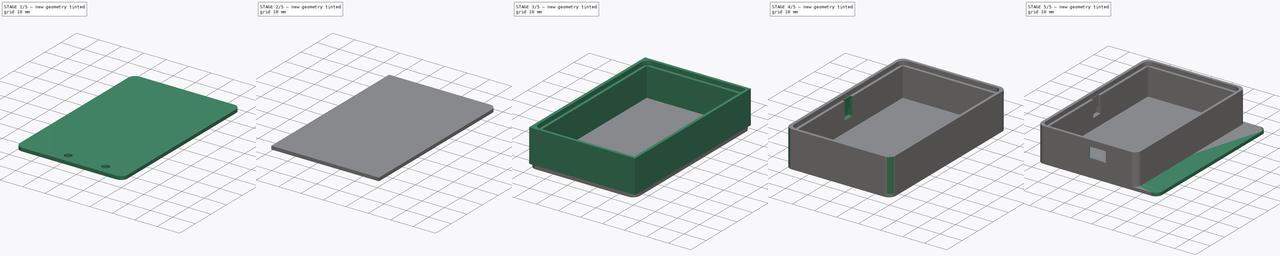
[diagram: build sequence overview — one tinted view per stage of 5, left to right]
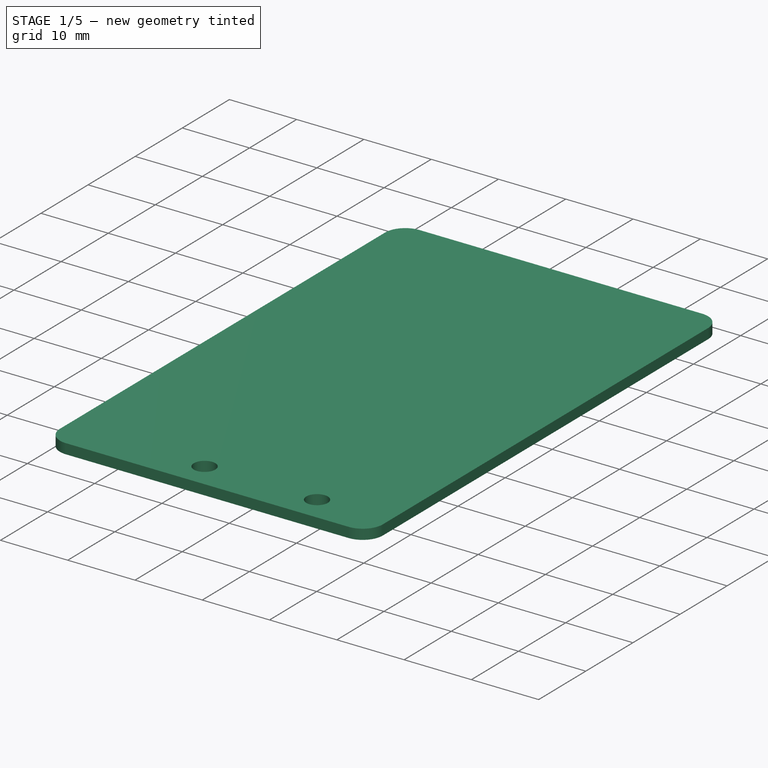
[diagram: stage 1 of 5 — iso view after this stage's code; geometry added in this stage tinted green]
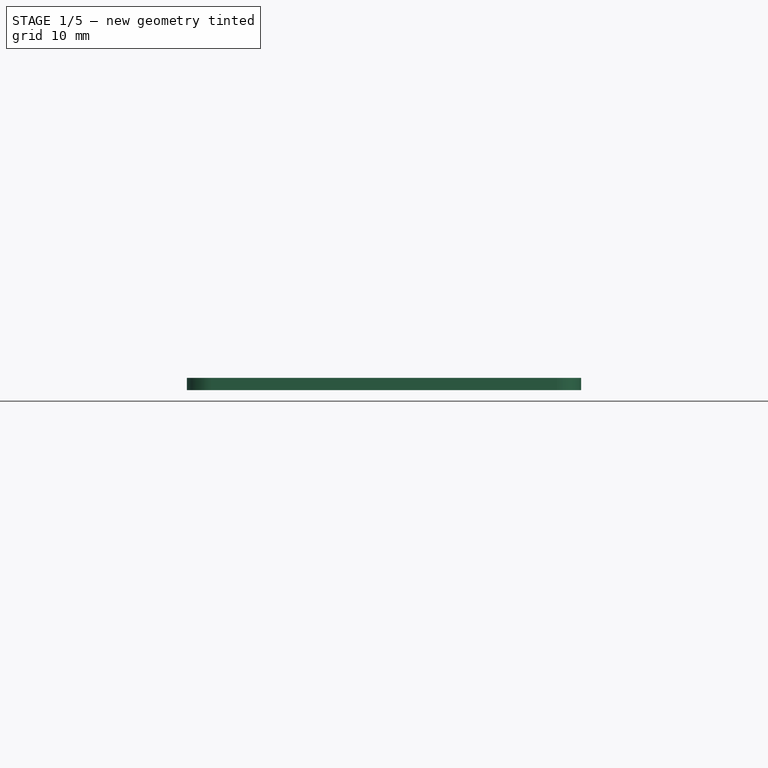
[diagram: stage 1 of 5 — front view after this stage's code; geometry added in this stage tinted green]
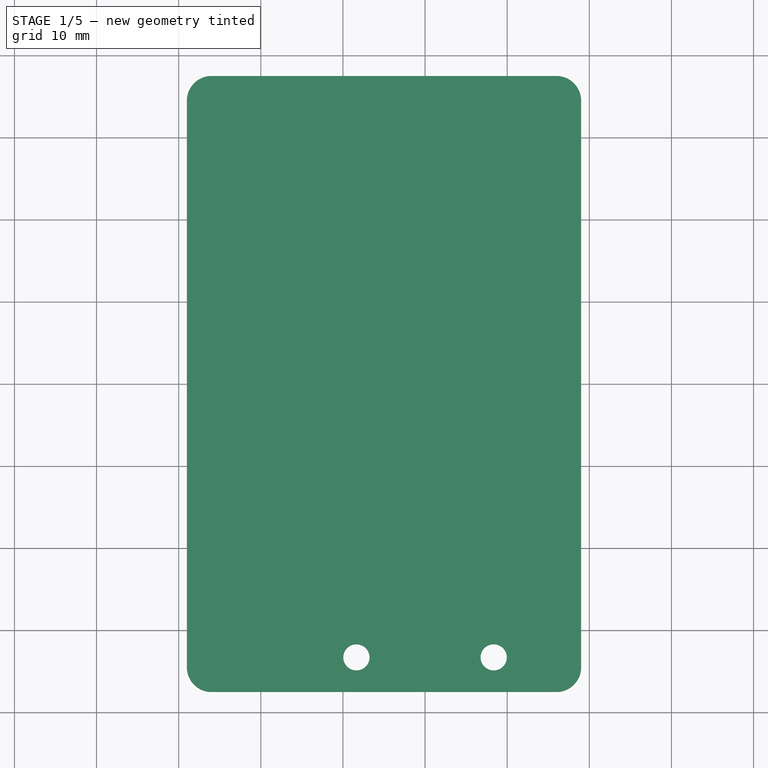
[diagram: stage 1 of 5 — top view after this stage's code; geometry added in this stage tinted green]
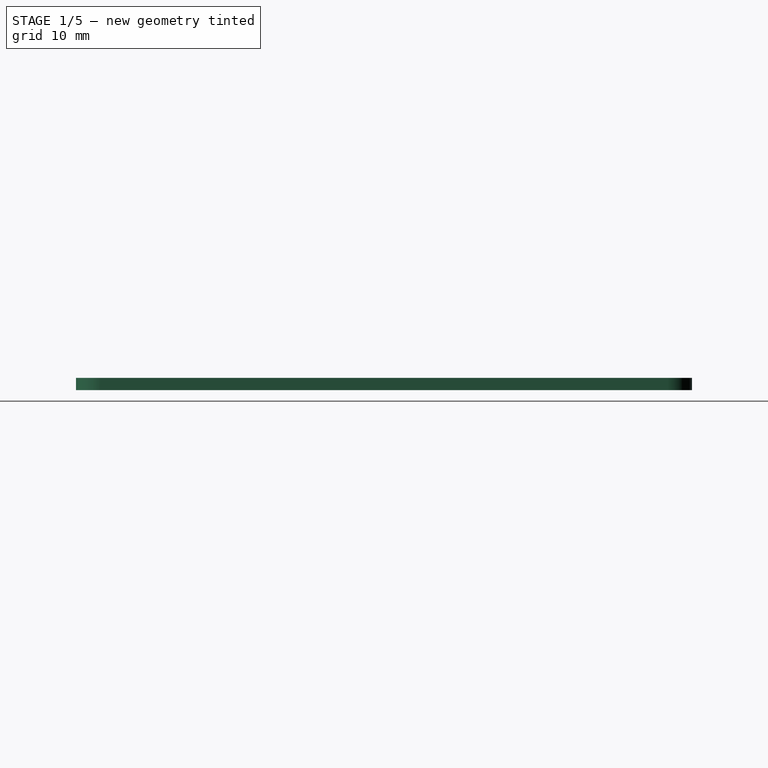
[diagram: stage 1 of 5 — right view after this stage's code; geometry added in this stage tinted green]
FCSTD DOCUMENT  (FreeCAD 0.16R)
Label: snap_case_top
License: All rights reserved
LicenseURL: http://en.wikipedia.org/wiki/All_rights_reserved
objects: PartDesign::Fillet×18, Sketcher::SketchObject×13, PartDesign::Pocket×11, PartDesign::Pad×2
note: 57 computed .brp shape members not serialized (recipe doc carries the construction recipe); baked Part::Feature solids carry a one-line shape summary decoded from their .brp

FEATURE [Sketcher::SketchObject] Sketch  label="base"
  sketch-geometry (8):
    g0: LineSegment [constr] StartX=-15 StartY=33.5 StartZ=0 EndX=15 EndY=33.5 EndZ=0
    g1: LineSegment [constr] StartX=15 StartY=33.5 StartZ=0 EndX=15 EndY=-33.5 EndZ=0
    g2: LineSegment [constr] StartX=15 StartY=-33.5 StartZ=0 EndX=-15 EndY=-33.5 EndZ=0
    g3: LineSegment [constr] StartX=-15 StartY=-33.5 StartZ=0 EndX=-15 EndY=33.5 EndZ=0
    g4: LineSegment StartX=-29 StartY=37.5 StartZ=0 EndX=19 EndY=37.5 EndZ=0
    g5: LineSegment StartX=19 StartY=37.5 StartZ=0 EndX=19 EndY=-37.5 EndZ=0
    g6: LineSegment StartX=19 StartY=-37.5 StartZ=0 EndX=-29 EndY=-37.5 EndZ=0
    g7: LineSegment StartX=-29 StartY=-37.5 StartZ=0 EndX=-29 EndY=37.5 EndZ=0
  constraints (24):
    c: Coincident(g0,g1)
    c: Coincident(g1,g2)
    c: Coincident(g2,g3)
    c: Coincident(g3,g0)
    c: Horizontal(g0)
    c: Horizontal(g2)
    c: Vertical(g1)
    c: Vertical(g3)
    c: Symmetric(g0,g0,g-2)
    c: Symmetric(g2,g0,g-1)
    c: DistanceX(g0,g0) = 30
    c: DistanceY(g3,g3) = 67
    c: Coincident(g4,g5)
    c: Coincident(g5,g6)
    c: Coincident(g6,g7)
    c: Coincident(g7,g4)
    c: Horizontal(g4)
    c: Horizontal(g6)
    c: Vertical(g5)
    c: Vertical(g7)
    c: DistanceX(g4,g4) = 48
    c: Symmetric(g4,g6,g-1)
    c: DistanceY(g7,g7) = 75
    c: DistanceX(g-1,g4) = 19
FEATURE [PartDesign::Pad] Pad
  Length = 1.5
  Length2 = 100
  Sketch = -> Sketch
  Type = 0
FEATURE [PartDesign::Fillet] Fillet014
  Base = -> Pad [Edge2]
  Radius = 3
FEATURE [PartDesign::Fillet] Fillet015
  Base = -> Fillet014 [Edge3]
  Radius = 3
FEATURE [PartDesign::Fillet] Fillet016
  Base = -> Fillet015 [Edge17]
  Radius = 3
FEATURE [PartDesign::Fillet] Fillet017
  Base = -> Fillet016 [Edge15]
  Radius = 3
FEATURE [Sketcher::SketchObject] Sketch016
  Placement = pos=(0,0,0) rot=(1,0,0;3.14159rad)
  Support = -> Fillet017 [Face1]
  sketch-geometry (2):
    g0: Circle CenterX=-8.35928 CenterY=33.2899 CenterZ=0 NormalX=0 NormalY=0 NormalZ=1 Radius=1.6
    g1: Circle CenterX=8.35928 CenterY=33.2899 CenterZ=0 NormalX=0 NormalY=0 NormalZ=1 Radius=1.6
  constraints (6):
    c: Equal(g1,g0)
    c: Radius(g0) = 1.6
    c: DistanceY(g-1,g0) = 33.2899
    c: DistanceY(g-1,g1) = 33.2899
    c: Symmetric(g0,g1,g-2)
    c: DistanceX(g0,g-1) = 8.35928
FEATURE [PartDesign::Pocket] Pocket012
  Length = 5
  Sketch = -> Sketch016
  Type = 1
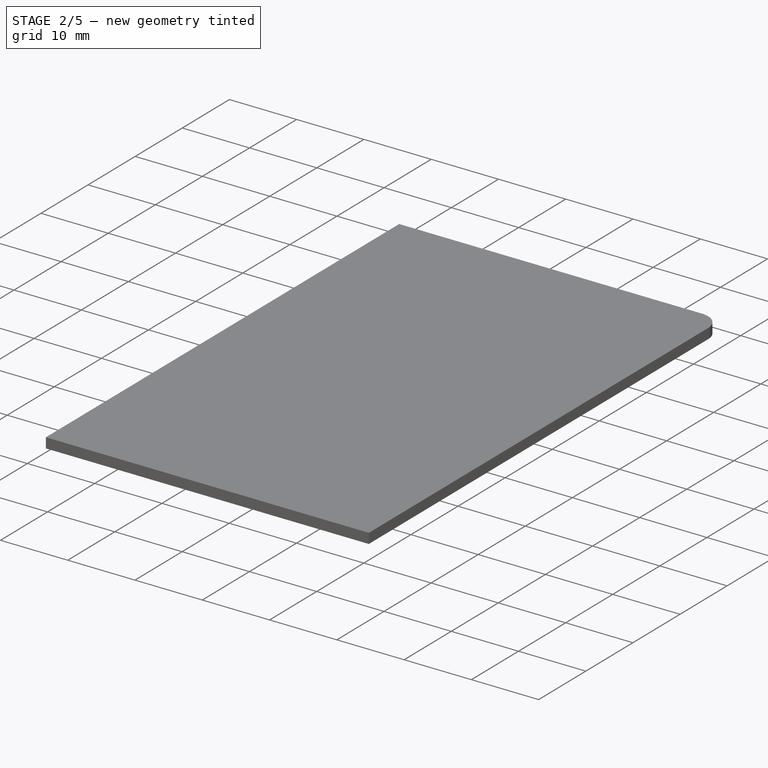
[diagram: stage 2 of 5 — iso view after this stage's code; geometry added in this stage tinted green]
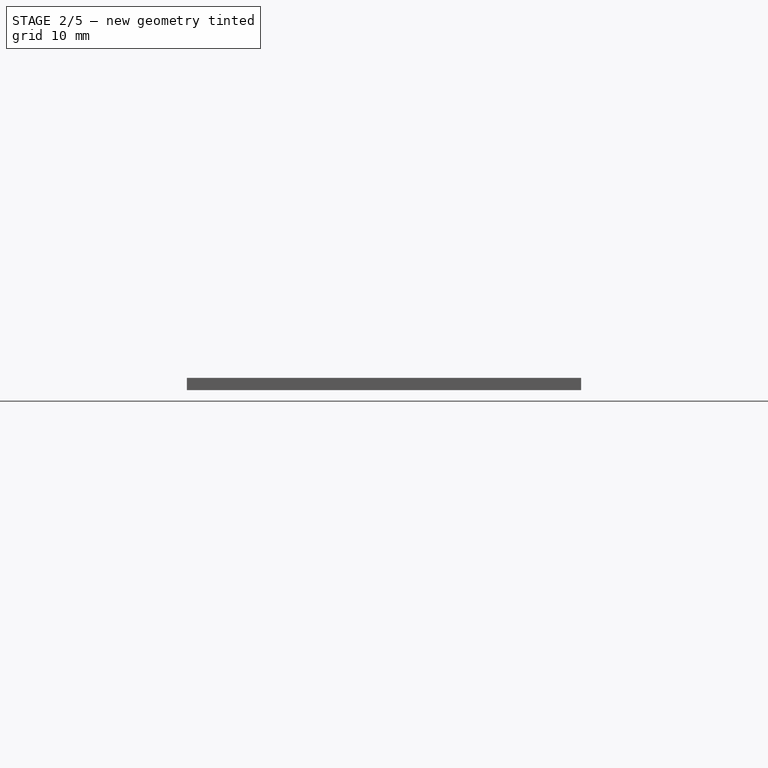
[diagram: stage 2 of 5 — front view after this stage's code; geometry added in this stage tinted green]
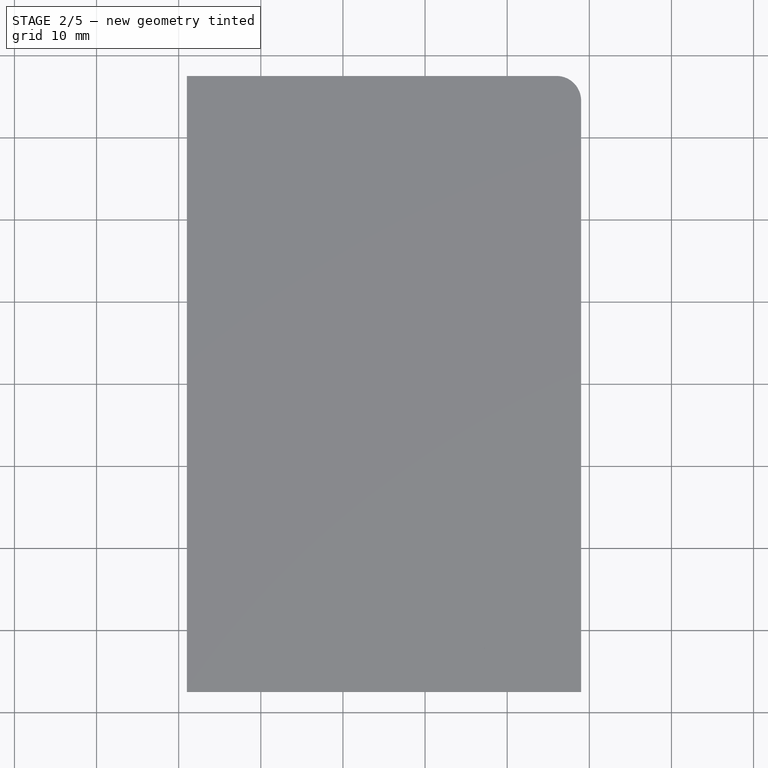
[diagram: stage 2 of 5 — top view after this stage's code; geometry added in this stage tinted green]
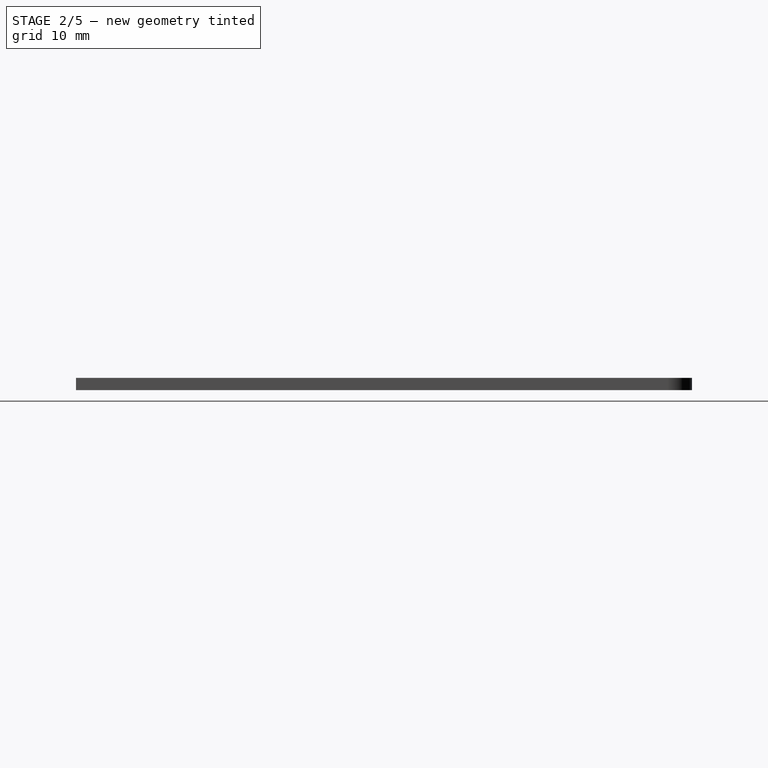
[diagram: stage 2 of 5 — right view after this stage's code; geometry added in this stage tinted green]
FEATURE [PartDesign::Fillet] Fillet006
  Base = -> Pad [Edge8]
  Radius = 3
FEATURE [PartDesign::Fillet] Fillet007
  Base = -> Fillet006 [Edge3,Edge11]
  Radius = 3
FEATURE [PartDesign::Fillet] Fillet008
  Base = -> Fillet007 [Edge20]
  Radius = 3
FEATURE [PartDesign::Fillet] Fillet010
  Base = -> Pad [Edge2]
  Radius = 3
FEATURE [PartDesign::Pocket] Pocket009
  Length = 5
  Sketch = -> Sketch010
  Type = 1
FEATURE [Sketcher::SketchObject] Sketch015
  Placement = pos=(0,0,0) rot=(1,0,0;3.14159rad)
  Support = -> Pocket009 [Face1]
  sketch-geometry (2):
    g0: Circle CenterX=-8.375 CenterY=33.3 CenterZ=0 NormalX=0 NormalY=0 NormalZ=1 Radius=2.45547
    g1: Circle CenterX=8.375 CenterY=33.3 CenterZ=0 NormalX=0 NormalY=0 NormalZ=1 Radius=2.5
  constraints (4):
    c: Symmetric(g0,g1,g-2)
    c: DistanceY(g-1,g0) = 33.3
    c: DistanceX(g0,g1) = 16.75
    c: Radius(g1) = 2.5
FEATURE [PartDesign::Pocket] Pocket011
  Length = 1
  Sketch = -> Sketch015
  Type = 0
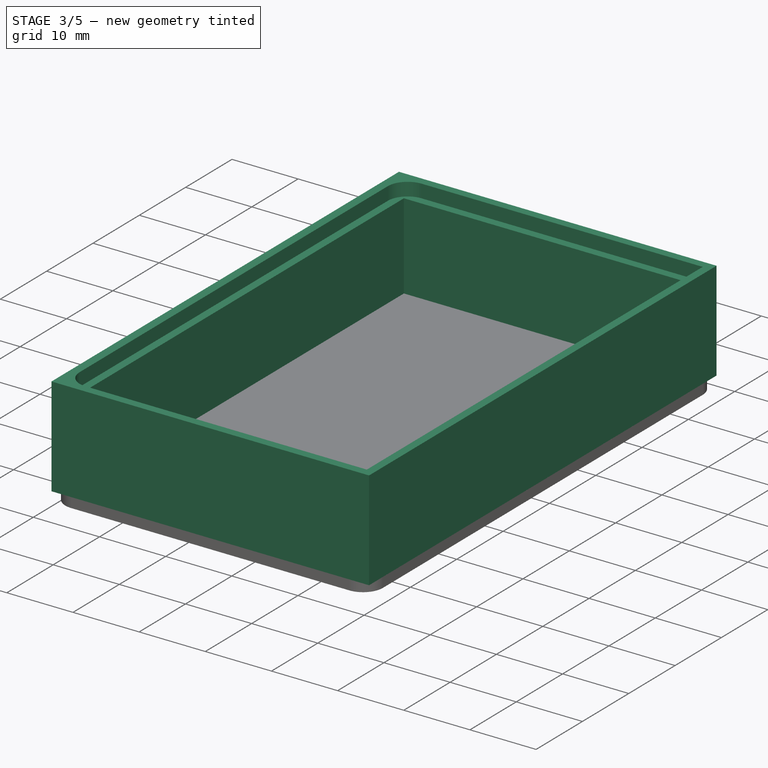
[diagram: stage 3 of 5 — iso view after this stage's code; geometry added in this stage tinted green]
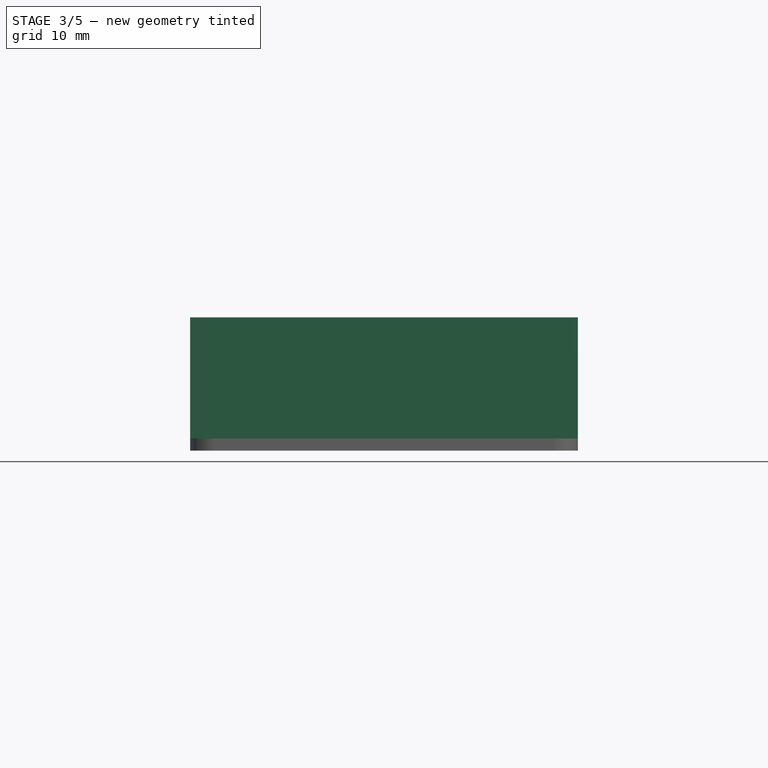
[diagram: stage 3 of 5 — front view after this stage's code; geometry added in this stage tinted green]
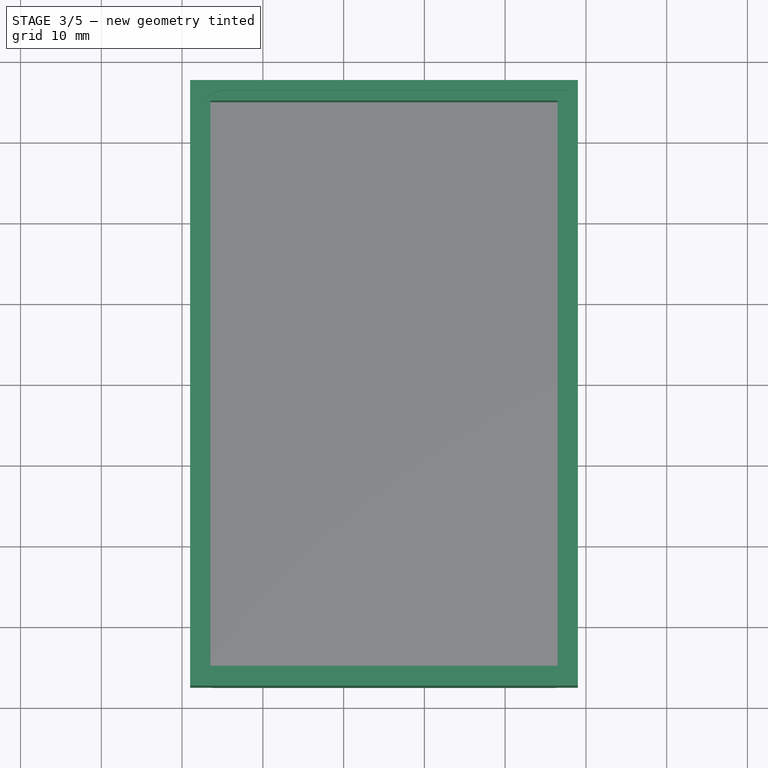
[diagram: stage 3 of 5 — top view after this stage's code; geometry added in this stage tinted green]
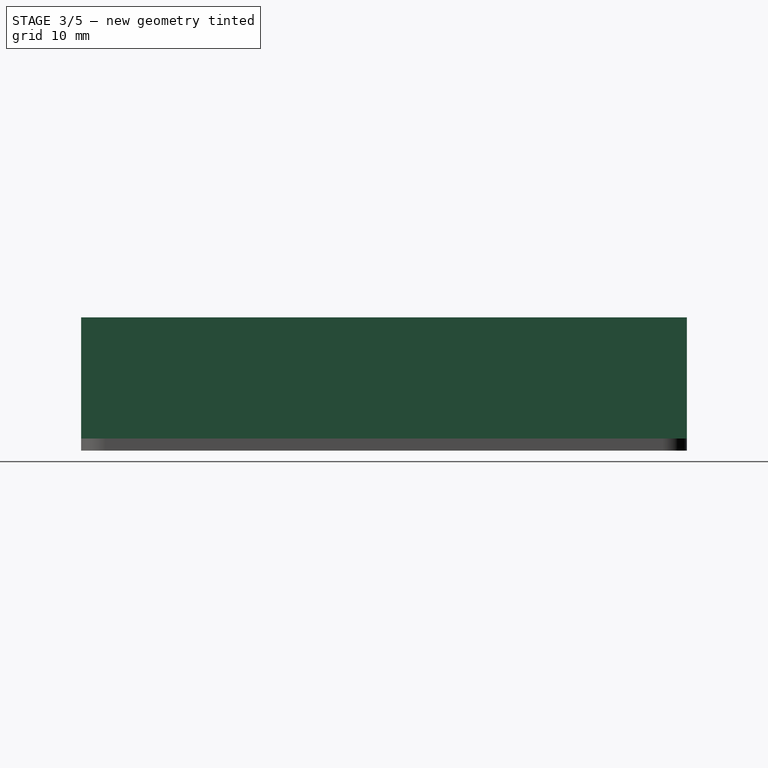
[diagram: stage 3 of 5 — right view after this stage's code; geometry added in this stage tinted green]
FEATURE [Sketcher::SketchObject] Sketch004  label="wall"
  Placement = pos=(0,0,1.5) rot=(0,0,1;0rad)
  sketch-geometry (8):
    g0: LineSegment StartX=-29 StartY=37.5 StartZ=0 EndX=19 EndY=37.5 EndZ=0
    g1: LineSegment StartX=19 StartY=37.5 StartZ=0 EndX=19 EndY=-37.5 EndZ=0
    g2: LineSegment StartX=19 StartY=-37.5 StartZ=0 EndX=-29 EndY=-37.5 EndZ=0
    g3: LineSegment StartX=-29 StartY=-37.5 StartZ=0 EndX=-29 EndY=37.5 EndZ=0
    g4: LineSegment StartX=-26.5 StartY=35 StartZ=0 EndX=-26.5 EndY=-35 EndZ=0
    g5: LineSegment StartX=16.5 StartY=35 StartZ=0 EndX=16.5 EndY=-35 EndZ=0
    g6: LineSegment StartX=-26.5 StartY=35 StartZ=0 EndX=16.5 EndY=35 EndZ=0
    g7: LineSegment StartX=-26.5 StartY=-35 StartZ=0 EndX=16.5 EndY=-35 EndZ=0
  constraints (24):
    c: Coincident(g0,g1)
    c: Coincident(g1,g2)
    c: Coincident(g2,g3)
    c: Coincident(g3,g0)
    c: Horizontal(g0)
    c: Horizontal(g2)
    c: Vertical(g1)
    c: Vertical(g3)
    c: DistanceX(g0,g0) = 48
    c: DistanceY(g3,g3) = 75
    c: Symmetric(g0,g2,g-1)
    c: Vertical(g4)
    c: Symmetric(g4,g4,g-1)
    c: DistanceY(g4,g4) = 70
    c: DistanceX(g0,g4) = 2.5
    c: Vertical(g5)
    c: DistanceY(g5,g5) = 70
    c: Symmetric(g5,g5,g-1)
    c: DistanceX(g5,g0) = 2.5
    c: Coincident(g6,g4)
    c: Coincident(g6,g5)
    c: Coincident(g7,g4)
    c: Coincident(g7,g5)
    c: DistanceX(g-1,g0) = 19
FEATURE [PartDesign::Pad] Pad002
  Length = 15
  Length2 = 100
  Placement = pos=(0,0,1.5) rot=(0,0,1;0rad)
  Sketch = -> Sketch004
  Type = 0
FEATURE [Sketcher::SketchObject] Sketch005
  Placement = pos=(0,0,16.5) rot=(0,0,1;0rad)
  Support = -> Pad002 [Face10]
  sketch-geometry (8):
    g0: LineSegment [constr] StartX=-26.4611 StartY=35 StartZ=0 EndX=16.5389 EndY=35 EndZ=0
    g1: LineSegment [constr] StartX=16.5389 StartY=35 StartZ=0 EndX=16.5389 EndY=-35 EndZ=0
    g2: LineSegment [constr] StartX=16.5389 StartY=-35 StartZ=0 EndX=-26.4611 EndY=-35 EndZ=0
    g3: LineSegment [constr] StartX=-26.4611 StartY=-35 StartZ=0 EndX=-26.4611 EndY=35 EndZ=0
    g4: LineSegment StartX=-27.7111 StartY=36.25 StartZ=0 EndX=17.7889 EndY=36.25 EndZ=0
    g5: LineSegment StartX=17.7889 StartY=36.25 StartZ=0 EndX=17.7889 EndY=-36.25 EndZ=0
    g6: LineSegment StartX=17.7889 StartY=-36.25 StartZ=0 EndX=-27.7111 EndY=-36.25 EndZ=0
    g7: LineSegment StartX=-27.7111 StartY=-36.25 StartZ=0 EndX=-27.7111 EndY=36.25 EndZ=0
  constraints (24):
    c: Coincident(g0,g1)
    c: Coincident(g1,g2)
    c: Coincident(g2,g3)
    c: Coincident(g3,g0)
    c: Horizontal(g0)
    c: Horizontal(g2)
    c: Vertical(g1)
    c: Vertical(g3)
    c: DistanceX(g0,g0) = 43
    c: DistanceY(g1,g1) = 70
    c: Symmetric(g0,g1,g-1)
    c: Coincident(g4,g5)
    c: Coincident(g5,g6)
    c: Coincident(g6,g7)
    c: Coincident(g7,g4)
    c: Horizontal(g4)
    c: Horizontal(g6)
    c: Vertical(g5)
    c: Vertical(g7)
    c: DistanceY(g5,g1) = 1.25
    c: DistanceX(g1,g5) = 1.25
    c: DistanceY(g0,g4) = 1.25
    c: DistanceX(g4,g0) = 1.25
    c: DistanceX(g-1,g0) = 16.5389
FEATURE [PartDesign::Pocket] Pocket
  Length = 2
  Placement = pos=(0,0,1.5) rot=(0,0,1;0rad)
  Sketch = -> Sketch005
  Type = 0
FEATURE [PartDesign::Fillet] Fillet
  Base = -> Pocket [Edge33]
  Placement = pos=(0,0,1.5) rot=(0,0,1;0rad)
  Radius = 3
FEATURE [PartDesign::Fillet] Fillet001
  Base = -> Fillet [Edge11]
  Placement = pos=(0,0,1.5) rot=(0,0,1;0rad)
  Radius = 3
FEATURE [PartDesign::Fillet] Fillet011
  Base = -> Fillet010 [Edge3]
  Radius = 3
FEATURE [PartDesign::Fillet] Fillet012
  Base = -> Fillet011 [Edge18]
  Radius = 3
FEATURE [PartDesign::Fillet] Fillet013
  Base = -> Fillet012 [Edge15]
  Radius = 3
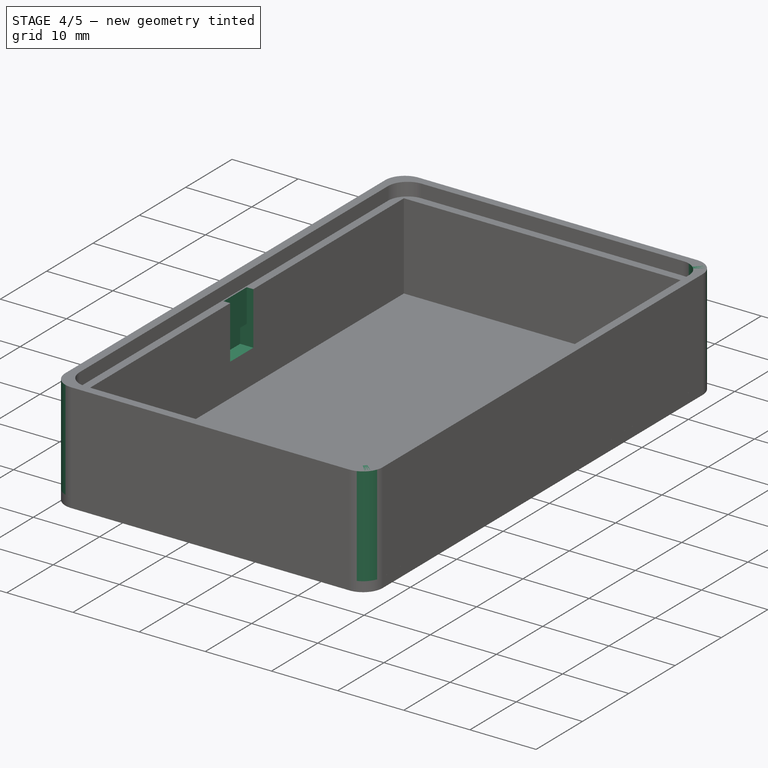
[diagram: stage 4 of 5 — iso view after this stage's code; geometry added in this stage tinted green]
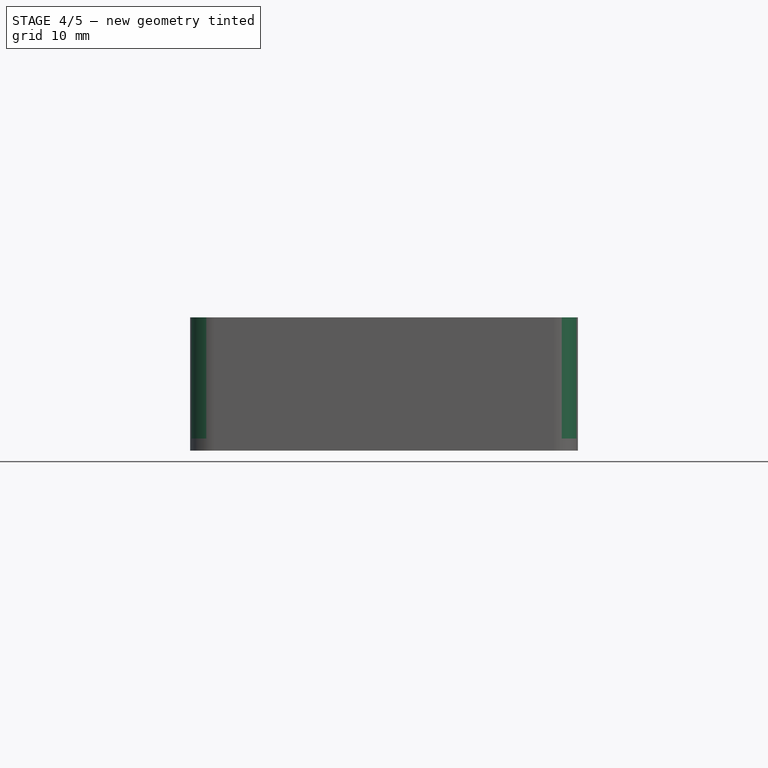
[diagram: stage 4 of 5 — front view after this stage's code; geometry added in this stage tinted green]
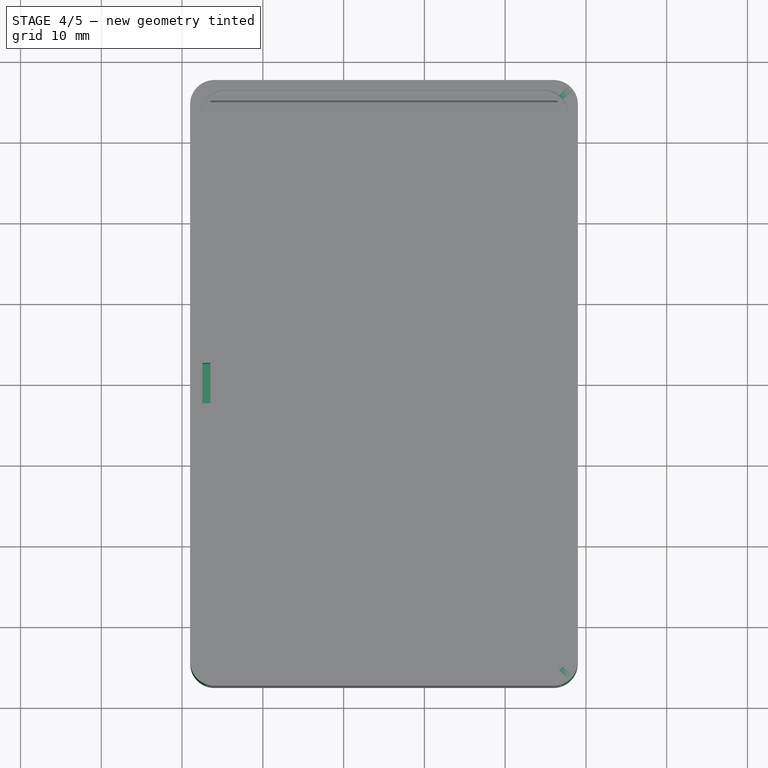
[diagram: stage 4 of 5 — top view after this stage's code; geometry added in this stage tinted green]
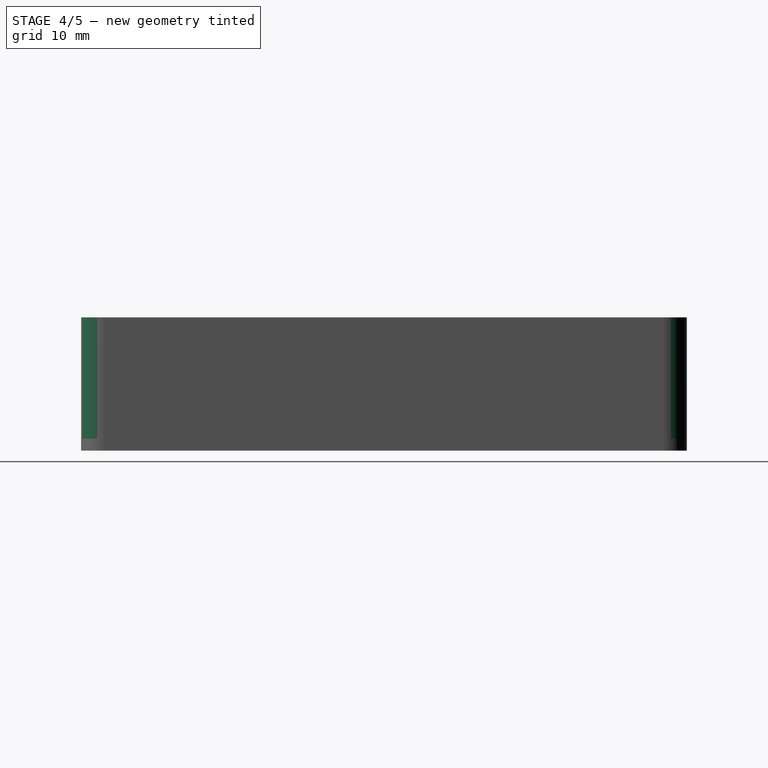
[diagram: stage 4 of 5 — right view after this stage's code; geometry added in this stage tinted green]
FEATURE [PartDesign::Fillet] Fillet002
  Base = -> Fillet001 [Edge18]
  Placement = pos=(0,0,1.5) rot=(0,0,1;0rad)
  Radius = 3
FEATURE [PartDesign::Fillet] Fillet003
  Base = -> Fillet002 [Edge19]
  Placement = pos=(0,0,1.5) rot=(0,0,1;0rad)
  Radius = 3
FEATURE [PartDesign::Fillet] Fillet004
  Base = -> Fillet003 [Edge29,Edge30]
  Placement = pos=(0,0,1.5) rot=(0,0,1;0rad)
  Radius = 3
FEATURE [PartDesign::Fillet] Fillet005
  Base = -> Fillet004 [Edge23,Edge25]
  Placement = pos=(0,0,1.5) rot=(0,0,1;0rad)
  Radius = 3
FEATURE [Sketcher::SketchObject] Sketch006
  Placement = pos=(-26.5,0,1.5) rot=(0.57735,0.57735,0.57735;2.0944rad)
  Support = -> Fillet005 [Face21]
  sketch-geometry (5):
    g0: LineSegment [constr] StartX=-35.1051 StartY=13 StartZ=0 EndX=36.4119 EndY=13 EndZ=0
    g1: LineSegment StartX=-2.5 StartY=8 StartZ=0 EndX=2.5 EndY=8 EndZ=0
    g2: LineSegment StartX=2.5 StartY=8 StartZ=0 EndX=2.5 EndY=13 EndZ=0
    g3: LineSegment StartX=2.5 StartY=13 StartZ=0 EndX=-2.5 EndY=13 EndZ=0
    g4: LineSegment StartX=-2.5 StartY=13 StartZ=0 EndX=-2.5 EndY=8 EndZ=0
  constraints (15):
    c: Horizontal(g0)
    c: DistanceX(g0,g0) = 71.517
    c: DistanceY(g-1,g0) = 13
    c: Coincident(g1,g2)
    c: Coincident(g2,g3)
    c: Coincident(g3,g4)
    c: Coincident(g4,g1)
    c: Horizontal(g1)
    c: Horizontal(g3)
    c: Vertical(g2)
    c: Vertical(g4)
    c: DistanceX(g1,g1) = 5
    c: Equal(g2,g1)
    c: DistanceY(g0,g1) = -5
    c: Symmetric(g1,g1,g-2)
FEATURE [PartDesign::Pocket] Pocket001
  Length = 1
  Placement = pos=(0,0,1.5) rot=(0,0,1;0rad)
  Sketch = -> Sketch006
  Type = 0
FEATURE [Sketcher::SketchObject] Sketch007
  Placement = pos=(-26.5,0,1.5) rot=(0.57735,0.57735,0.57735;2.0944rad)
  Support = -> Pocket001 [Face21]
  sketch-geometry (5):
    g0: LineSegment [constr] StartX=-34.4108 StartY=8 StartZ=0 EndX=34.406 EndY=8 EndZ=0
    g1: LineSegment StartX=-2.5 StartY=8 StartZ=0 EndX=2.5 EndY=8 EndZ=0
    g2: LineSegment StartX=2.5 StartY=8 StartZ=0 EndX=2.5 EndY=5 EndZ=0
    g3: LineSegment StartX=2.5 StartY=5 StartZ=0 EndX=-2.5 EndY=5 EndZ=0
    g4: LineSegment StartX=-2.5 StartY=5 StartZ=0 EndX=-2.5 EndY=8 EndZ=0
  constraints (14):
    c: Horizontal(g0)
    c: DistanceY(g-1,g0) = 8
    c: Coincident(g1,g2)
    c: Coincident(g2,g3)
    c: Coincident(g3,g4)
    c: Coincident(g4,g1)
    c: Horizontal(g1)
    c: Horizontal(g3)
    c: Vertical(g2)
    c: Vertical(g4)
    c: DistanceY(g2,g2) = 3
    c: DistanceX(g1,g1) = 5
    c: DistanceY(g-1,g1) = 8
    c: Symmetric(g3,g2,g-2)
FEATURE [PartDesign::Pocket] Pocket002
  Length = 2
  Placement = pos=(0,0,1.5) rot=(0,0,1;0rad)
  Sketch = -> Sketch007
  Type = 0
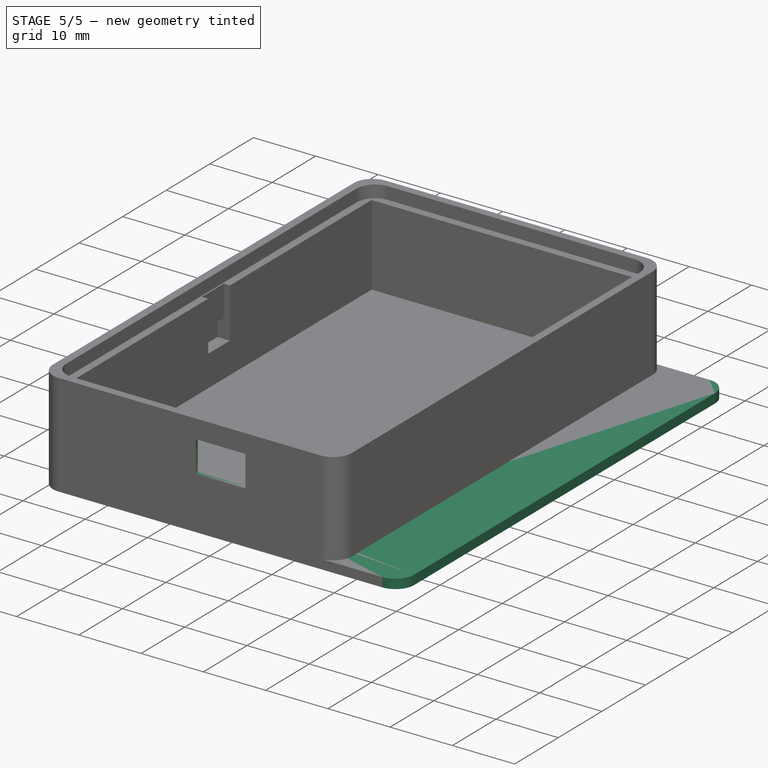
[diagram: stage 5 of 5 — iso view after this stage's code; geometry added in this stage tinted green]
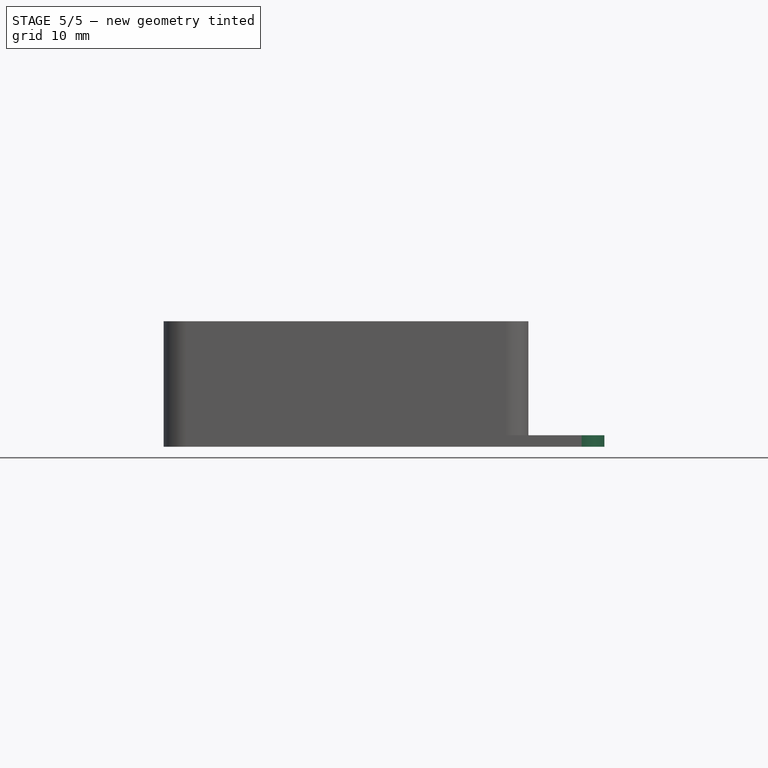
[diagram: stage 5 of 5 — front view after this stage's code; geometry added in this stage tinted green]
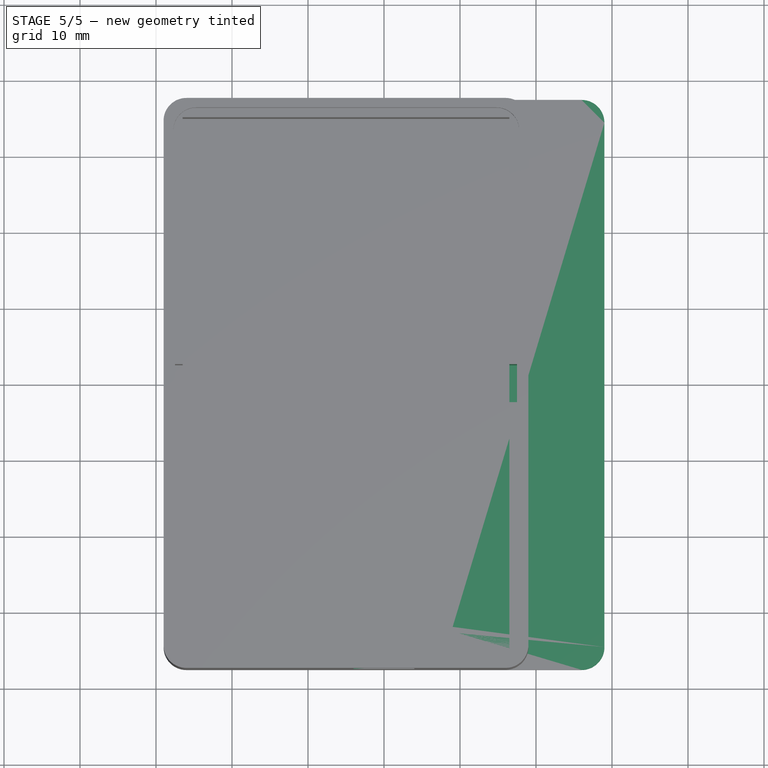
[diagram: stage 5 of 5 — top view after this stage's code; geometry added in this stage tinted green]
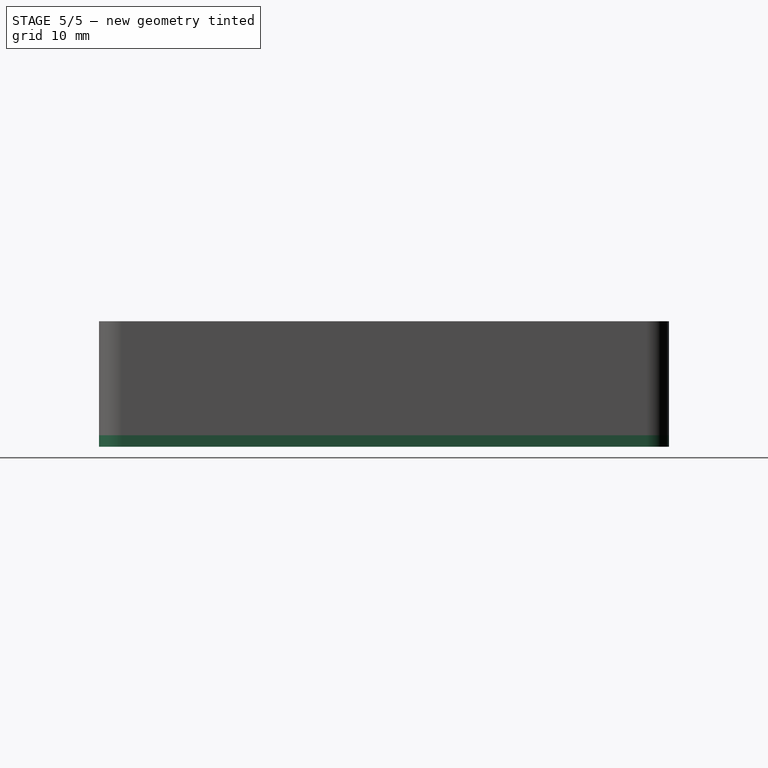
[diagram: stage 5 of 5 — right view after this stage's code; geometry added in this stage tinted green]
FEATURE [PartDesign::Fillet] Fillet009
  Base = -> Fillet008 [Edge8,Edge7,Edge5,Edge3,Edge1,Edge2,Edge4,Edge6]
  Radius = 1
FEATURE [Sketcher::SketchObject] Sketch008
  Placement = pos=(16.5,0,1.5) rot=(0.57735,-0.57735,-0.57735;2.0944rad)
  Support = -> Pocket002 [Face23]
  sketch-geometry (4):
    g0: LineSegment StartX=-2.5 StartY=13 StartZ=0 EndX=2.5 EndY=13 EndZ=0
    g1: LineSegment StartX=2.5 StartY=13 StartZ=0 EndX=2.5 EndY=8 EndZ=0
    g2: LineSegment StartX=2.5 StartY=8 StartZ=0 EndX=-2.5 EndY=8 EndZ=0
    g3: LineSegment StartX=-2.5 StartY=8 StartZ=0 EndX=-2.5 EndY=13 EndZ=0
  constraints (12):
    c: Coincident(g0,g1)
    c: Coincident(g1,g2)
    c: Coincident(g2,g3)
    c: Coincident(g3,g0)
    c: Horizontal(g0)
    c: Horizontal(g2)
    c: Vertical(g1)
    c: Vertical(g3)
    c: DistanceX(g0,g0) = 5
    c: DistanceY(g1,g1) = 5
    c: Symmetric(g0,g0,g-2)
    c: DistanceY(g-1,g0) = 13
FEATURE [PartDesign::Pocket] Pocket003
  Length = 1
  Placement = pos=(0,0,1.5) rot=(0,0,1;0rad)
  Sketch = -> Sketch008
  Type = 0
FEATURE [Sketcher::SketchObject] Sketch009
  Placement = pos=(16.5,0,1.5) rot=(0.57735,-0.57735,-0.57735;2.0944rad)
  Support = -> Pocket003 [Face23]
  sketch-geometry (4):
    g0: LineSegment StartX=-2.5 StartY=8 StartZ=0 EndX=2.5 EndY=8 EndZ=0
    g1: LineSegment StartX=2.5 StartY=8 StartZ=0 EndX=2.5 EndY=5 EndZ=0
    g2: LineSegment StartX=2.5 StartY=5 StartZ=0 EndX=-2.5 EndY=5 EndZ=0
    g3: LineSegment StartX=-2.5 StartY=5 StartZ=0 EndX=-2.5 EndY=8 EndZ=0
  constraints (12):
    c: Coincident(g0,g1)
    c: Coincident(g1,g2)
    c: Coincident(g2,g3)
    c: Coincident(g3,g0)
    c: Horizontal(g0)
    c: Horizontal(g2)
    c: Vertical(g1)
    c: Vertical(g3)
    c: Symmetric(g0,g0,g-2)
    c: DistanceX(g2,g2) = 5
    c: DistanceY(g1,g1) = 3
    c: DistanceY(g-1,g0) = 8
FEATURE [PartDesign::Pocket] Pocket004
  Length = 2
  Placement = pos=(0,0,1.5) rot=(0,0,1;0rad)
  Sketch = -> Sketch009
  Type = 0
FEATURE [Sketcher::SketchObject] Sketch010
  Placement = pos=(0,0,0) rot=(1,0,0;3.14159rad)
  Support = -> Fillet008 [Face1]
  sketch-geometry (3):
    g0: Circle CenterX=-8.375 CenterY=33.3 CenterZ=0 NormalX=0 NormalY=0 NormalZ=1 Radius=1.6
    g1: Circle CenterX=8.375 CenterY=33.3 CenterZ=0 NormalX=0 NormalY=0 NormalZ=1 Radius=1.6
    g2: LineSegment [constr] StartX=-19.0049 StartY=36.3 StartZ=0 EndX=26.1114 EndY=36.3 EndZ=0
  constraints (9):
    c: DistanceX(g0,g1) = 16.75
    c: Symmetric(g0,g1,g-2)
    c: Equal(g0,g1)
    c: Radius(g0) = 1.6
    c: Horizontal(g2)
    c: DistanceX(g2,g2) = 45.1163
    c: DistanceY(g-1,g2) = 36.3
    c: DistanceY(g1,g2) = 3
    c: DistanceX(g2,g-1) = 19.0049
FEATURE [Sketcher::SketchObject] Sketch011
  Placement = pos=(0,-35,1.5) rot=(0,0.707107,0.707107;3.14159rad)
  Support = -> Pocket004 [Face22]
  sketch-geometry (4):
    g0: LineSegment StartX=-11.5 StartY=12 StartZ=0 EndX=11.5 EndY=12 EndZ=0
    g1: LineSegment StartX=11.5 StartY=12 StartZ=0 EndX=11.5 EndY=0 EndZ=0
    g2: LineSegment StartX=11.5 StartY=0 StartZ=0 EndX=-11.5 EndY=0 EndZ=0
    g3: LineSegment StartX=-11.5 StartY=0 StartZ=0 EndX=-11.5 EndY=12 EndZ=0
  constraints (11):
    c: Coincident(g0,g1)
    c: Coincident(g1,g2)
    c: Coincident(g2,g3)
    c: Coincident(g3,g0)
    c: Horizontal(g0)
    c: Horizontal(g2)
    c: Vertical(g3)
    c: Symmetric(g0,g0,g-2)
    c: DistanceX(g0,g0) = 23
    c: DistanceY(g-1,g2) = 0
    c: DistanceY(g1,g1) = 12
FEATURE [PartDesign::Pocket] Pocket006
  Length = 2
  Placement = pos=(0,0,1.5) rot=(0,0,1;0rad)
  Sketch = -> Sketch011
  Type = 0
FEATURE [Sketcher::SketchObject] Sketch012
  Placement = pos=(0,0,0) rot=(1,0,0;3.14159rad)
  sketch-geometry (4):
    g0: LineSegment [constr] StartX=-8.375 StartY=33.3 StartZ=0 EndX=8.375 EndY=33.3 EndZ=0
    g1: LineSegment [constr] StartX=-15.7816 StartY=36.3 StartZ=0 EndX=17.1901 EndY=36.3 EndZ=0
    g2: Circle CenterX=-8.375 CenterY=33.3 CenterZ=0 NormalX=0 NormalY=0 NormalZ=1 Radius=2.5
    g3: Circle CenterX=8.375 CenterY=33.3 CenterZ=0 NormalX=0 NormalY=0 NormalZ=1 Radius=2.5
  constraints (11):
    c: Horizontal(g0)
    c: DistanceX(g0,g0) = 16.75
    c: Symmetric(g0,g0,g-2)
    c: Horizontal(g1)
    c: DistanceX(g1,g1) = 32.9717
    c: DistanceY(g-1,g1) = 36.3
    c: Coincident(g2,g0)
    c: DistanceY(g0,g1) = 3
    c: Coincident(g3,g0)
    c: Equal(g3,g2)
    c: Radius(g3) = 2.5
FEATURE [PartDesign::Pocket] Pocket007
  Length = 2
  Midplane = true
  Sketch = -> Sketch012
  Type = 0
FEATURE [Sketcher::SketchObject] Sketch013
  Placement = pos=(0,-37.5,1.5) rot=(1,0,0;1.5708rad)
  Support = -> Pocket006 [Face5]
  sketch-geometry (4):
    g0: LineSegment StartX=-4 StartY=12 StartZ=0 EndX=4 EndY=12 EndZ=0
    g1: LineSegment StartX=4 StartY=12 StartZ=0 EndX=4 EndY=7 EndZ=0
    g2: LineSegment StartX=4 StartY=7 StartZ=0 EndX=-4 EndY=7 EndZ=0
    g3: LineSegment StartX=-4 StartY=7 StartZ=0 EndX=-4 EndY=12 EndZ=0
  constraints (12):
    c: Coincident(g0,g1)
    c: Coincident(g1,g2)
    c: Coincident(g2,g3)
    c: Coincident(g3,g0)
    c: Horizontal(g0)
    c: Horizontal(g2)
    c: Vertical(g1)
    c: Vertical(g3)
    c: DistanceX(g2,g2) = 8
    c: DistanceY(g1,g1) = 5
    c: Symmetric(g2,g1,g-2)
    c: DistanceY(g-1,g1) = 7
FEATURE [PartDesign::Pocket] Pocket008
  Length = 5
  Placement = pos=(0,0,1.5) rot=(0,0,1;0rad)
  Sketch = -> Sketch013
  Type = 0
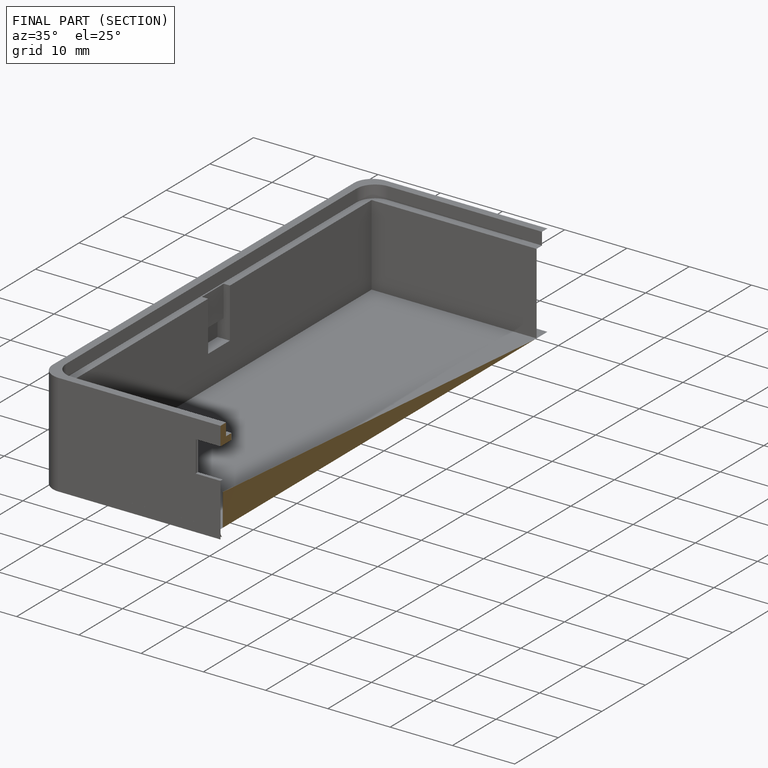
[diagram: finished part — half-section view (interior)]
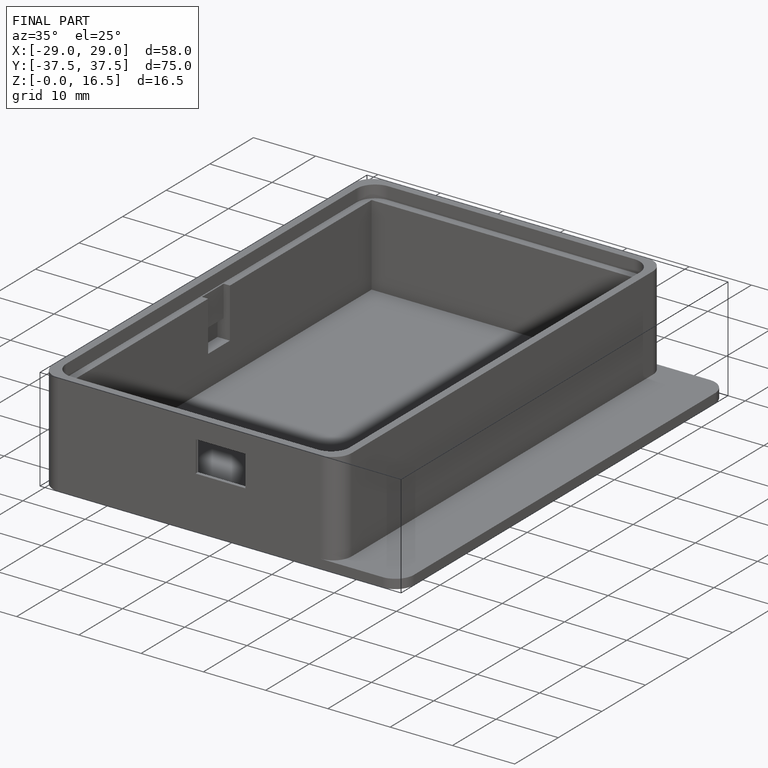
[diagram: finished part — iso view with bounding-box wireframe]
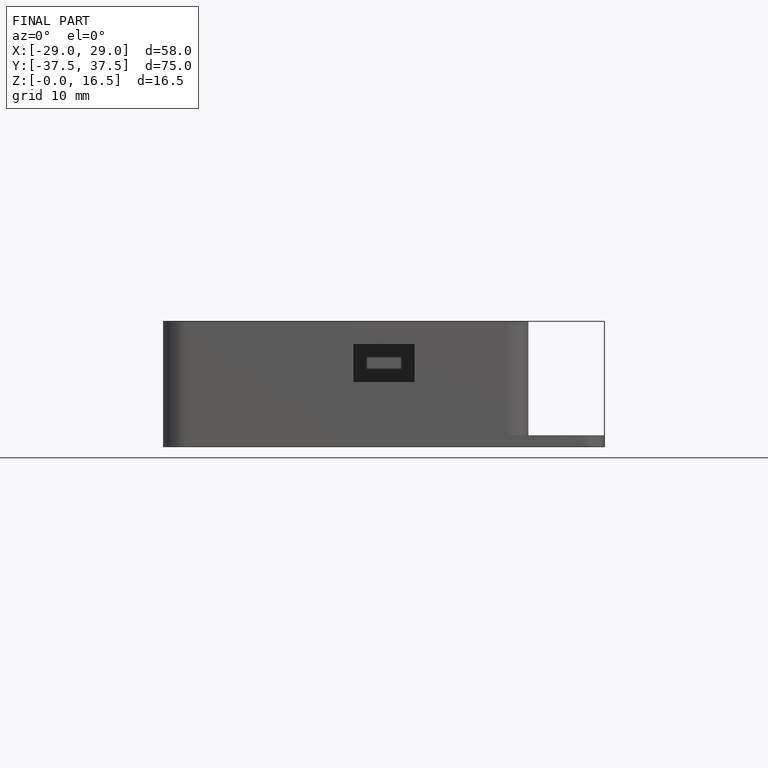
[diagram: finished part — front view with bounding-box wireframe]
